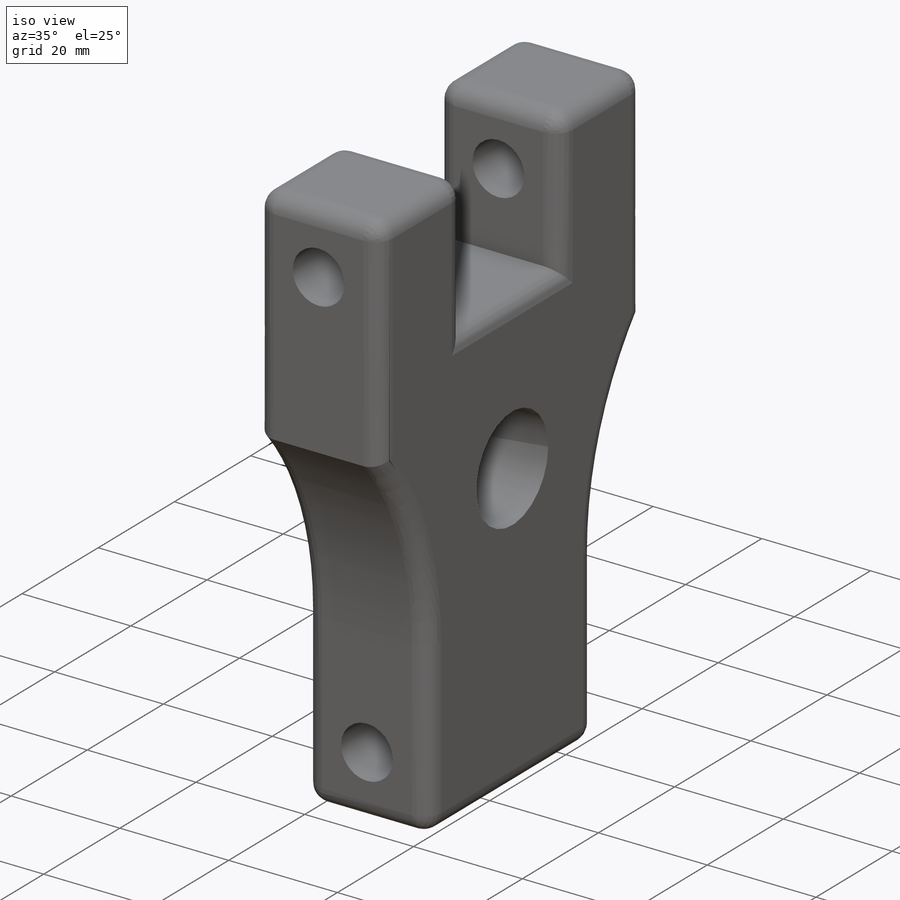
[diagram: iso view]
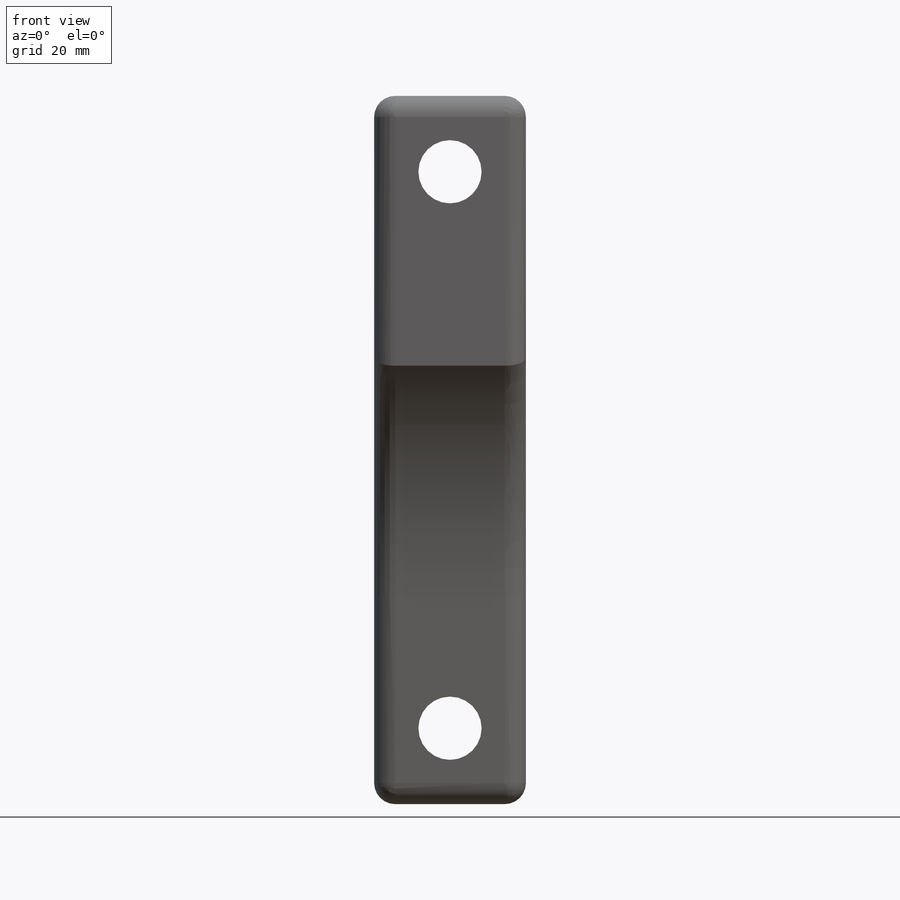
[diagram: front view]
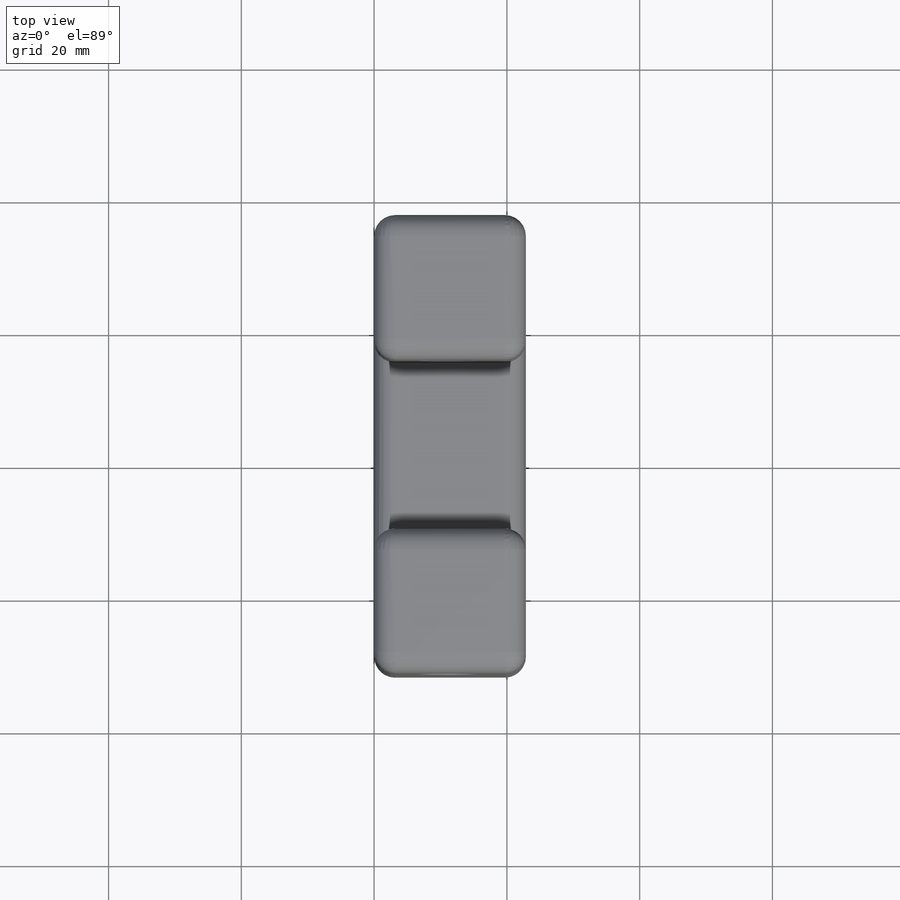
[diagram: top view]
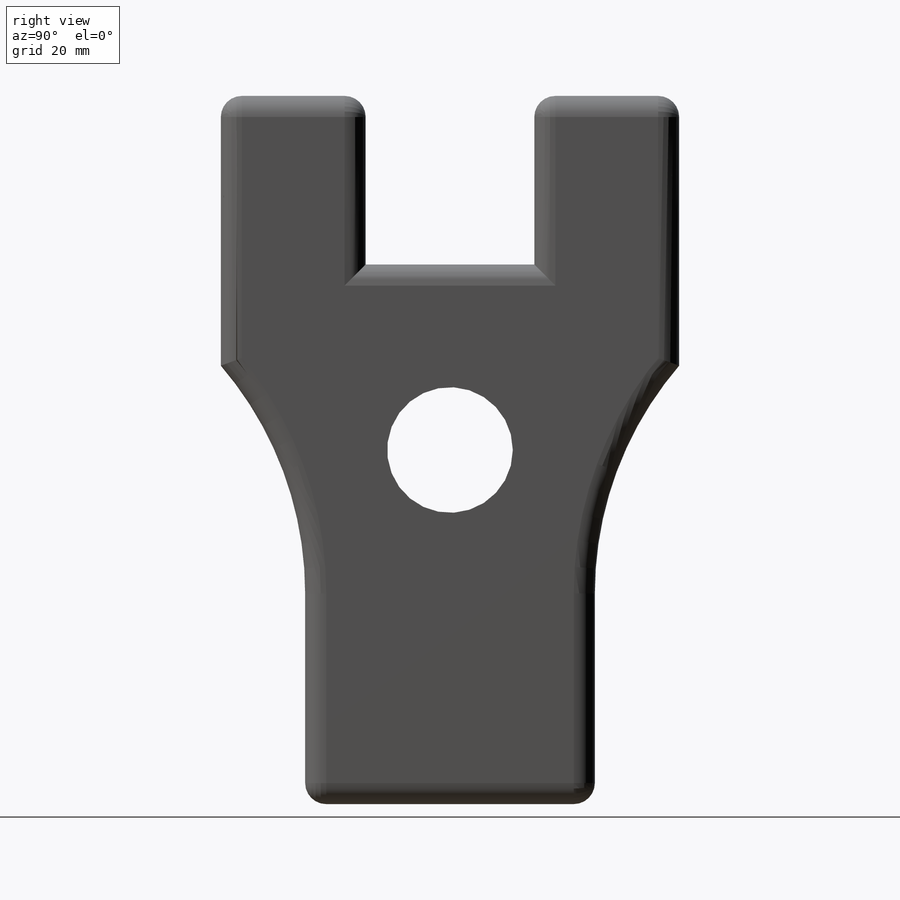
[diagram: right view]
SOLIDWORKS PART (.sldprt)
format: sldprt  version: not decoded by parser v0  size: 305,664 bytes
history: native  units: mm
features: sketch x3, cut_extrude x2, material x1, extrude x1, fillet x1 (+11 scaffold rows collapsed)
feature tree (19):
  scaffold x11  (default folders/planes/origin — collapsed)
  material  "Material <not specified>"
  sketch  "Sketch1"  dims[c1.D1=101.6mm c1.D2=12.7mm c1.D3=12.7mm c1.D4=101.6mm c1.D5=25.4mm c1.D6=25.4mm c2.D1=50.8mm c2.D2=~48.645731mm c3.D1=44.3738mm c3.D2=69.0372mm c3.D3=25.4mm c3.D4=101.6mm c3.D5=31.75mm c3.D6=40.64mm c3.D7=25.4mm c3.D8=193.548mm c4.D4=106.68mm c4.D1=12.7mm]
  extrude  "Boss-Extrude1"  Depth=22.86mm
  sketch  "Sketch2"  dims[c1.D1=~4.495536mm c1.D2=~4.27349mm c1.D3=~3.863797mm c2.D2=9.525mm c2.D1=10.16mm c3.D2=10.16mm c3.D3=10.16mm c3.D1=83.82mm]
  cut_extrude  "Cut-Extrude1"  [1 undecoded]
  sketch  "Sketch3"  dims[c1.D1=~6.408083mm c1.D2=18.923mm c2.D1=27.94mm]
  cut_extrude  "Cut-Extrude2"  [1 undecoded]
  fillet  "Fillet1"  Radius=3.175mm
decode coverage: 5 of 7 modeling features carry decoded parameters
note: ~ marks probable driven/reference dimensions
note: 2 parameter values undecoded
note: suppression state not decoded; provenance and decode notes live in map.json
